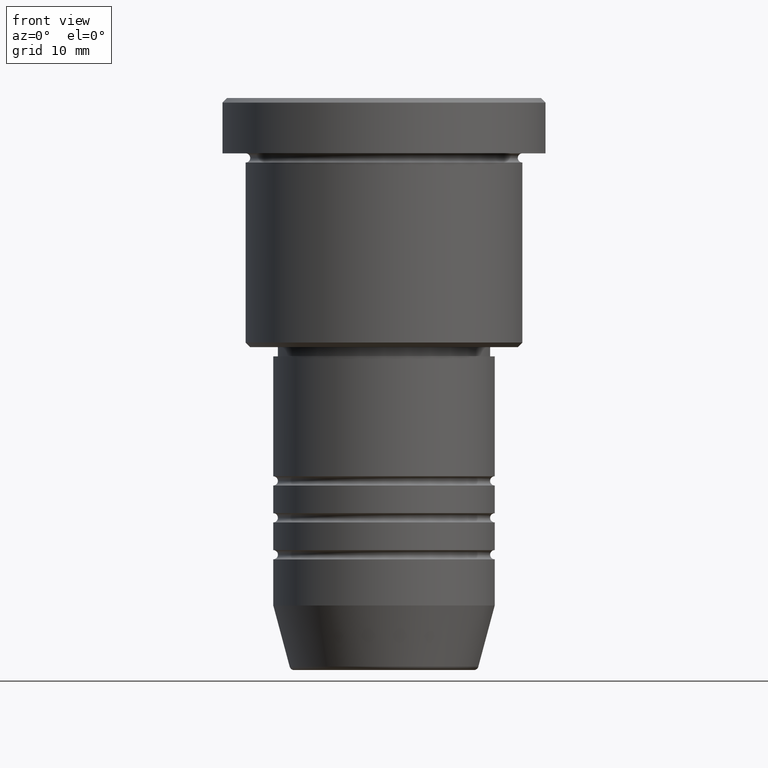
[diagram: clean part render]
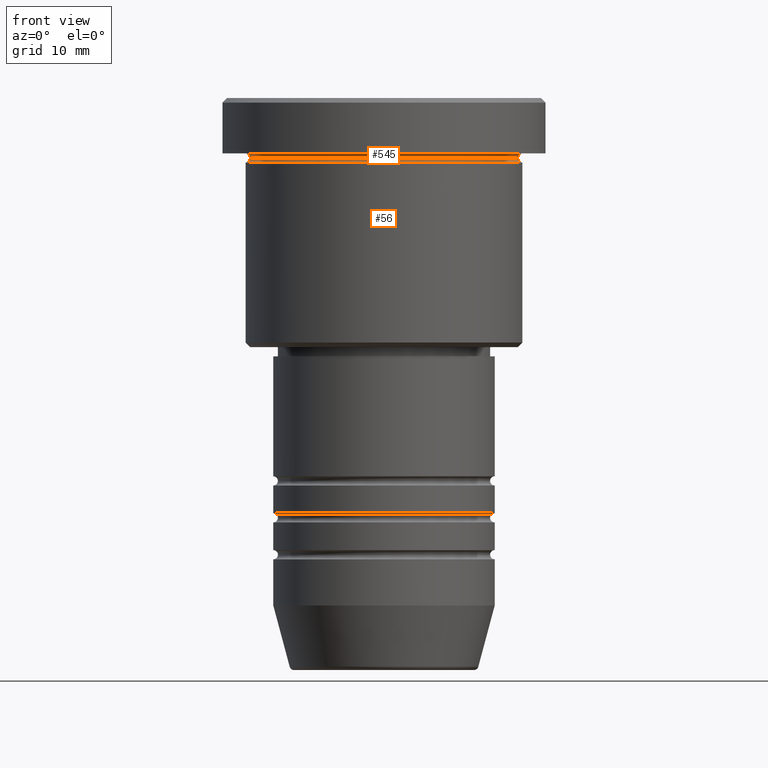
[diagram: same view with one multi-face feature highlighted, each face labeled with its STEP entity id]
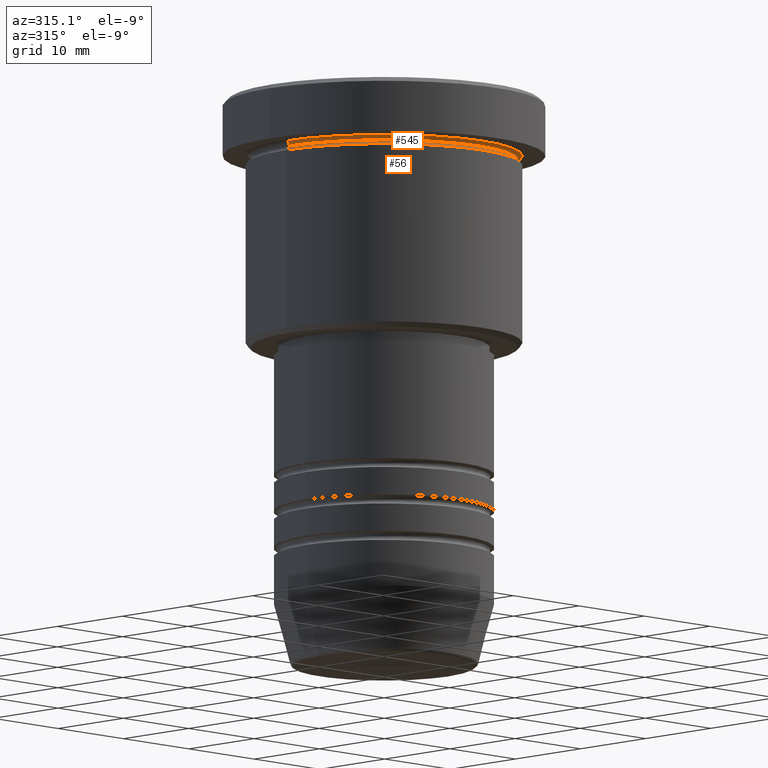
[diagram: same view with one multi-face feature highlighted, each face labeled with its STEP entity id]
A machine part, front view. The highlighted faces form ONE feature: a constant-radius fillet chain: 2 tangent blend faces with common blend radius 0.5 mm. The faces share edges in the B-rep.
A second angle (auxiliary view) of the same feature is appended — it is thin or edge-on in the first view.
Their STEP definitions:
[1] entity #56 (Torus):
#7 = DIRECTION ( 'NONE',  ( 0.000000000000000000, 0.000000000000000000, -1.000000000000000000 ) ) ;
#16 = EDGE_CURVE ( 'NONE', #456, #234, #248, .T. ) ;
#32 = VERTEX_POINT ( 'NONE', #932 ) ;
#34 = DIRECTION ( 'NONE',  ( 1.224646799147353207E-16, 1.000000000000000000, 0.000000000000000000 ) ) ;
#46 = CARTESIAN_POINT ( 'NONE',  ( -15.00000000000000000, 1.836970198721029589E-15, -6.999999999999995559 ) ) ;
#56 = ADVANCED_FACE ( 'NONE', ( #782 ), #1026, .F. ) ;
#67 = EDGE_LOOP ( 'NONE', ( #565, #976, #1161, #544 ) ) ;
#102 = AXIS2_PLACEMENT_3D ( 'NONE', #542, #826, #7 ) ;
#234 = VERTEX_POINT ( 'NONE', #46 ) ;
#235 = EDGE_CURVE ( 'NONE', #234, #335, #906, .T. ) ;
#248 = CIRCLE ( 'NONE', #1151, 0.5000000000000004441 ) ;
#335 = VERTEX_POINT ( 'NONE', #1085 ) ;
#376 = AXIS2_PLACEMENT_3D ( 'NONE', #593, #400, #769 ) ;
#384 = CARTESIAN_POINT ( 'NONE',  ( -15.00000000000000000, 1.836970198721029589E-15, -6.499999999999995559 ) ) ;
#387 = EDGE_CURVE ( 'NONE', #456, #32, #685, .T. ) ;
#400 = DIRECTION ( 'NONE',  ( -0.000000000000000000, -0.000000000000000000, 1.000000000000000000 ) ) ;
#442 = EDGE_CURVE ( 'NONE', #32, #335, #570, .T. ) ;
#456 = VERTEX_POINT ( 'NONE', #837 ) ;
#541 = DIRECTION ( 'NONE',  ( 1.000000000000000000, 0.000000000000000000, 0.000000000000000000 ) ) ;
#542 = CARTESIAN_POINT ( 'NONE',  ( 15.00000000000000000, 0.000000000000000000, -6.499999999999995559 ) ) ;
#544 = ORIENTED_EDGE ( 'NONE', *, *, #442, .F. ) ;
#565 = ORIENTED_EDGE ( 'NONE', *, *, #387, .F. ) ;
#570 = CIRCLE ( 'NONE', #102, 0.5000000000000004441 ) ;
#584 = CARTESIAN_POINT ( 'NONE',  ( 0.000000000000000000, 0.000000000000000000, -6.499999999999995559 ) ) ;
#593 = CARTESIAN_POINT ( 'NONE',  ( 0.000000000000000000, 0.000000000000000000, -6.999999999999995559 ) ) ;
#661 = CARTESIAN_POINT ( 'NONE',  ( 0.000000000000000000, 0.000000000000000000, -6.499999999999995559 ) ) ;
#685 = CIRCLE ( 'NONE', #800, 14.49999999999999822 ) ;
#750 = DIRECTION ( 'NONE',  ( -1.000000000000000000, 1.224646799147349509E-16, 0.000000000000000000 ) ) ;
#769 = DIRECTION ( 'NONE',  ( 1.000000000000000000, 0.000000000000000000, 0.000000000000000000 ) ) ;
#782 = FACE_OUTER_BOUND ( 'NONE', #67, .T. ) ;
#800 = AXIS2_PLACEMENT_3D ( 'NONE', #584, #967, #973 ) ;
#826 = DIRECTION ( 'NONE',  ( 0.000000000000000000, -1.000000000000000000, 0.000000000000000000 ) ) ;
#837 = CARTESIAN_POINT ( 'NONE',  ( -14.49999999999999822, 1.806354028742345802E-15, -6.499999999999995559 ) ) ;
#906 = CIRCLE ( 'NONE', #376, 15.00000000000000000 ) ;
#932 = CARTESIAN_POINT ( 'NONE',  ( 14.49999999999999822, 0.000000000000000000, -6.499999999999995559 ) ) ;
#967 = DIRECTION ( 'NONE',  ( -0.000000000000000000, -0.000000000000000000, 1.000000000000000000 ) ) ;
#973 = DIRECTION ( 'NONE',  ( 1.000000000000000000, 0.000000000000000000, 0.000000000000000000 ) ) ;
#976 = ORIENTED_EDGE ( 'NONE', *, *, #16, .T. ) ;
#1001 = DIRECTION ( 'NONE',  ( -0.000000000000000000, -0.000000000000000000, 1.000000000000000000 ) ) ;
#1026 = TOROIDAL_SURFACE ( 'NONE', #1112, 15.00000000000000000, 0.5000000000000000000 ) ;
#1085 = CARTESIAN_POINT ( 'NONE',  ( 15.00000000000000000, 0.000000000000000000, -6.999999999999995559 ) ) ;
#1112 = AXIS2_PLACEMENT_3D ( 'NONE', #661, #1001, #541 ) ;
#1151 = AXIS2_PLACEMENT_3D ( 'NONE', #384, #34, #750 ) ;
#1161 = ORIENTED_EDGE ( 'NONE', *, *, #235, .T. ) ;
[2] entity #545 (Torus):
#2 = VERTEX_POINT ( 'NONE', #239 ) ;
#32 = VERTEX_POINT ( 'NONE', #932 ) ;
#37 = EDGE_LOOP ( 'NONE', ( #870, #158, #215, #1181 ) ) ;
#68 = AXIS2_PLACEMENT_3D ( 'NONE', #353, #1008, #812 ) ;
#158 = ORIENTED_EDGE ( 'NONE', *, *, #835, .T. ) ;
#191 = CARTESIAN_POINT ( 'NONE',  ( 0.000000000000000000, 0.000000000000000000, -5.999999999999995559 ) ) ;
#215 = ORIENTED_EDGE ( 'NONE', *, *, #733, .F. ) ;
#231 = AXIS2_PLACEMENT_3D ( 'NONE', #191, #462, #289 ) ;
#239 = CARTESIAN_POINT ( 'NONE',  ( 15.00000000000000000, 1.836970198721029589E-15, -5.999999999999994671 ) ) ;
#265 = AXIS2_PLACEMENT_3D ( 'NONE', #774, #682, #1139 ) ;
#267 = DIRECTION ( 'NONE',  ( -0.000000000000000000, -1.000000000000000000, -0.000000000000000000 ) ) ;
#289 = DIRECTION ( 'NONE',  ( -1.000000000000000000, 0.000000000000000000, 0.000000000000000000 ) ) ;
#306 = CIRCLE ( 'NONE', #265, 0.5000000000000004441 ) ;
#353 = CARTESIAN_POINT ( 'NONE',  ( 0.000000000000000000, 0.000000000000000000, -6.499999999999995559 ) ) ;
#358 = AXIS2_PLACEMENT_3D ( 'NONE', #1100, #267, #721 ) ;
#387 = EDGE_CURVE ( 'NONE', #456, #32, #685, .T. ) ;
#417 = EDGE_CURVE ( 'NONE', #456, #1058, #939, .T. ) ;
#426 = FACE_OUTER_BOUND ( 'NONE', #37, .T. ) ;
#456 = VERTEX_POINT ( 'NONE', #837 ) ;
#462 = DIRECTION ( 'NONE',  ( -0.000000000000000000, -0.000000000000000000, 1.000000000000000000 ) ) ;
#471 = TOROIDAL_SURFACE ( 'NONE', #68, 15.00000000000000000, 0.5000000000000000000 ) ;
#545 = ADVANCED_FACE ( 'NONE', ( #426 ), #471, .F. ) ;
#584 = CARTESIAN_POINT ( 'NONE',  ( 0.000000000000000000, 0.000000000000000000, -6.499999999999995559 ) ) ;
#682 = DIRECTION ( 'NONE',  ( -1.224646799147353207E-16, 1.000000000000000000, 0.000000000000000000 ) ) ;
#685 = CIRCLE ( 'NONE', #800, 14.49999999999999822 ) ;
#721 = DIRECTION ( 'NONE',  ( 0.000000000000000000, 0.000000000000000000, -1.000000000000000000 ) ) ;
#733 = EDGE_CURVE ( 'NONE', #1058, #2, #1110, .T. ) ;
#774 = CARTESIAN_POINT ( 'NONE',  ( 15.00000000000000000, 1.836970198721029589E-15, -6.499999999999995559 ) ) ;
#800 = AXIS2_PLACEMENT_3D ( 'NONE', #584, #967, #973 ) ;
#812 = DIRECTION ( 'NONE',  ( -1.000000000000000000, 0.000000000000000000, 0.000000000000000000 ) ) ;
#835 = EDGE_CURVE ( 'NONE', #32, #2, #306, .T. ) ;
#837 = CARTESIAN_POINT ( 'NONE',  ( -14.49999999999999822, 1.806354028742345802E-15, -6.499999999999995559 ) ) ;
#870 = ORIENTED_EDGE ( 'NONE', *, *, #387, .T. ) ;
#932 = CARTESIAN_POINT ( 'NONE',  ( 14.49999999999999822, 0.000000000000000000, -6.499999999999995559 ) ) ;
#939 = CIRCLE ( 'NONE', #358, 0.5000000000000004441 ) ;
#967 = DIRECTION ( 'NONE',  ( -0.000000000000000000, -0.000000000000000000, 1.000000000000000000 ) ) ;
#973 = DIRECTION ( 'NONE',  ( 1.000000000000000000, 0.000000000000000000, 0.000000000000000000 ) ) ;
#998 = CARTESIAN_POINT ( 'NONE',  ( -15.00000000000000000, 0.000000000000000000, -5.999999999999994671 ) ) ;
#1008 = DIRECTION ( 'NONE',  ( 0.000000000000000000, 0.000000000000000000, -1.000000000000000000 ) ) ;
#1058 = VERTEX_POINT ( 'NONE', #998 ) ;
#1100 = CARTESIAN_POINT ( 'NONE',  ( -15.00000000000000000, 0.000000000000000000, -6.499999999999995559 ) ) ;
#1110 = CIRCLE ( 'NONE', #231, 15.00000000000000000 ) ;
#1139 = DIRECTION ( 'NONE',  ( -1.000000000000000000, -1.224646799147349509E-16, 0.000000000000000000 ) ) ;
#1181 = ORIENTED_EDGE ( 'NONE', *, *, #417, .F. ) ;